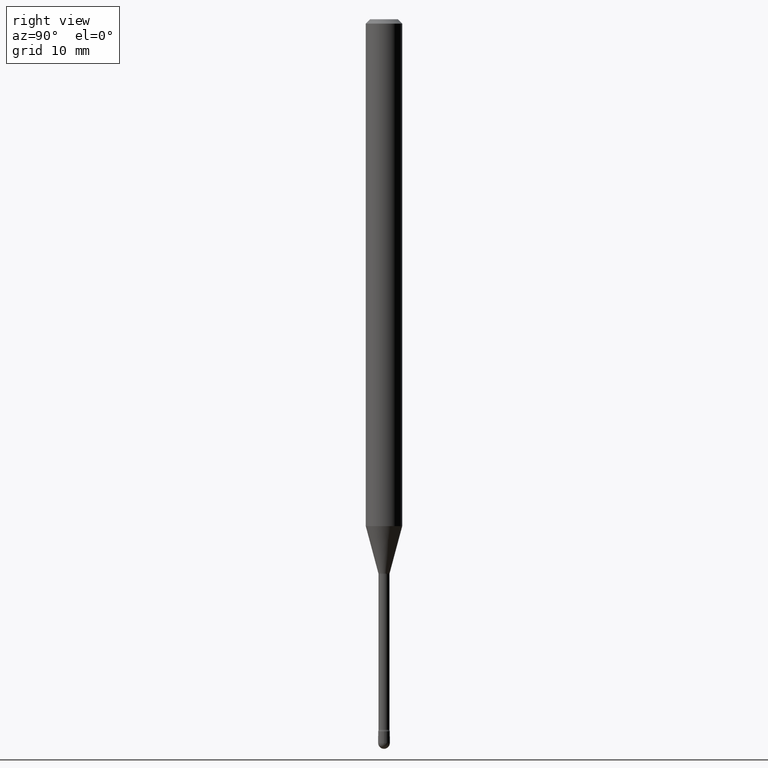
[diagram: clean part render]
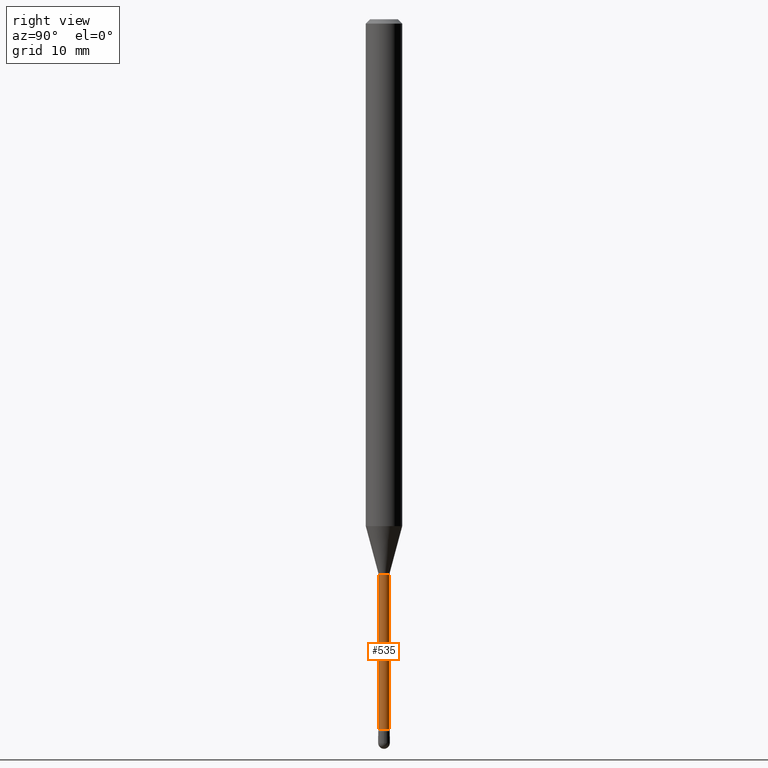
[diagram: same view with one face highlighted and labeled with its STEP entity id]
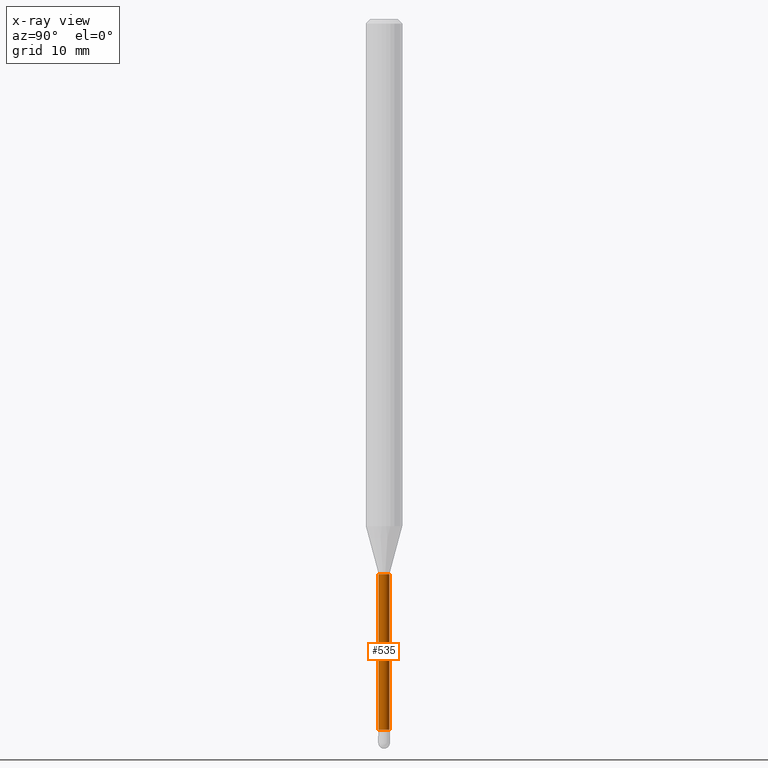
[diagram: x-ray of the same camera — body ghosted, the highlighted face saturated]
A machine part, right view. The second image highlights one B-rep face of the part: STEP entity #535.
The next image is the same camera in x-ray: the body ghosted, the highlighted face saturated — about 0% of this face is hidden behind the body in this view.
In plain terms, the highlighted cylindrical surface (edge-blend (fillet) strip) has radius 0.4775 mm, axis along (-0, 0, 1).
Its self-contained STEP definition (entity closure, byte-faithful):
#1 = CARTESIAN_POINT ( 'NONE',  ( -1.312796983405020974E-16, -0.01880000000000004237, 5.437146037398076934E-16 ) ) ;
#3 = ORIENTED_EDGE ( 'NONE', *, *, #358, .T. ) ;
#6 = EDGE_CURVE ( 'NONE', #454, #184, #68, .T. ) ;
#16 = VECTOR ( 'NONE', #241, 39.37007874015748143 ) ;
#66 = VERTEX_POINT ( 'NONE', #509 ) ;
#68 = CIRCLE ( 'NONE', #362, 0.01880000000000000074 ) ;
#70 = FACE_OUTER_BOUND ( 'NONE', #303, .T. ) ;
#103 = DIRECTION ( 'NONE',  ( -2.445418451658306189E-29, 3.491553449391568423E-15, 1.000000000000000000 ) ) ;
#120 = DIRECTION ( 'NONE',  ( -2.445418451658306189E-29, 3.491553449391568423E-15, 1.000000000000000000 ) ) ;
#122 = DIRECTION ( 'NONE',  ( -6.982962677686265133E-15, -1.000000000000000000, 0.000000000000000000 ) ) ;
#123 = ORIENTED_EDGE ( 'NONE', *, *, #564, .T. ) ;
#134 = VERTEX_POINT ( 'NONE', #264 ) ;
#182 = CIRCLE ( 'NONE', #492, 0.01880000000000008401 ) ;
#184 = VERTEX_POINT ( 'NONE', #339 ) ;
#205 = CARTESIAN_POINT ( 'NONE',  ( -1.312796983404552834E-16, -0.01880000000000664126, -1.901974787463811323 ) ) ;
#207 = DIRECTION ( 'NONE',  ( -6.982962677686265922E-15, -1.000000000000000000, 3.491553449391568817E-15 ) ) ;
#240 = LINE ( 'NONE', #1, #488 ) ;
#241 = DIRECTION ( 'NONE',  ( -2.445418451658306189E-29, 3.491553449391568423E-15, 1.000000000000000000 ) ) ;
#245 = DIRECTION ( 'NONE',  ( -6.982962677686265922E-15, -1.000000000000000000, 0.000000000000000000 ) ) ;
#253 = EDGE_CURVE ( 'NONE', #66, #454, #240, .T. ) ;
#264 = CARTESIAN_POINT ( 'NONE',  ( 1.378452907375192457E-16, 0.01879999999999158386, -2.434121224617320944 ) ) ;
#298 = ORIENTED_EDGE ( 'NONE', *, *, #253, .F. ) ;
#303 = EDGE_LOOP ( 'NONE', ( #123, #3, #366, #298 ) ) ;
#321 = CARTESIAN_POINT ( 'NONE',  ( 1.335820343228991114E-16, 0.01880000000000004237, 4.124321940426844331E-16 ) ) ;
#336 = CARTESIAN_POINT ( 'NONE',  ( 4.651124239852889729E-29, -6.640846629825066582E-15, -1.901974787463811323 ) ) ;
#339 = CARTESIAN_POINT ( 'NONE',  ( 1.335820343229585471E-16, 0.01879999999999335675, -1.901974787463811323 ) ) ;
#358 = EDGE_CURVE ( 'NONE', #134, #184, #363, .T. ) ;
#362 = AXIS2_PLACEMENT_3D ( 'NONE', #336, #120, #245 ) ;
#363 = LINE ( 'NONE', #321, #16 ) ;
#366 = ORIENTED_EDGE ( 'NONE', *, *, #6, .F. ) ;
#415 = CARTESIAN_POINT ( 'NONE',  ( -1.169113584055446105E-44, 1.669184350826100908E-30, 4.780733988912460139E-16 ) ) ;
#454 = VERTEX_POINT ( 'NONE', #205 ) ;
#456 = CYLINDRICAL_SURFACE ( 'NONE', #527, 0.01880000000000004237 ) ;
#462 = DIRECTION ( 'NONE',  ( -2.445418451658306189E-29, 3.491553449391568423E-15, 1.000000000000000000 ) ) ;
#488 = VECTOR ( 'NONE', #103, 39.37007874015748143 ) ;
#492 = AXIS2_PLACEMENT_3D ( 'NONE', #505, #508, #122 ) ;
#505 = CARTESIAN_POINT ( 'NONE',  ( 5.952444956252308774E-29, -8.498864358049834295E-15, -2.434121224617320944 ) ) ;
#508 = DIRECTION ( 'NONE',  ( -2.445418451658306189E-29, 3.491553449391568423E-15, 1.000000000000000000 ) ) ;
#509 = CARTESIAN_POINT ( 'NONE',  ( -1.312796983404428588E-16, -0.01880000000000858068, -2.434121224617320944 ) ) ;
#527 = AXIS2_PLACEMENT_3D ( 'NONE', #415, #462, #207 ) ;
#535 = ADVANCED_FACE ( 'NONE', ( #70 ), #456, .T. ) ;
#564 = EDGE_CURVE ( 'NONE', #66, #134, #182, .T. ) ;